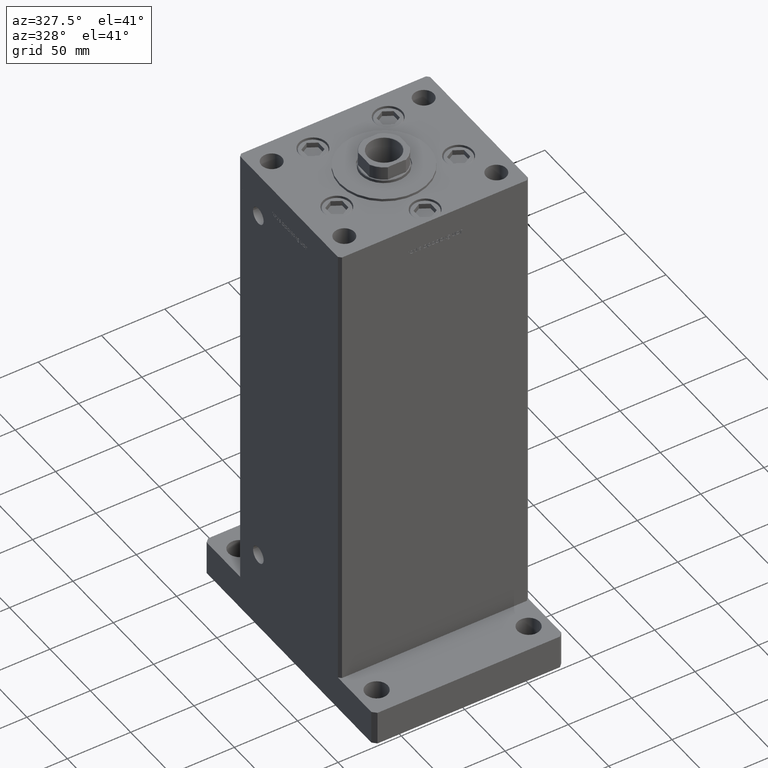
[diagram: clean part render]
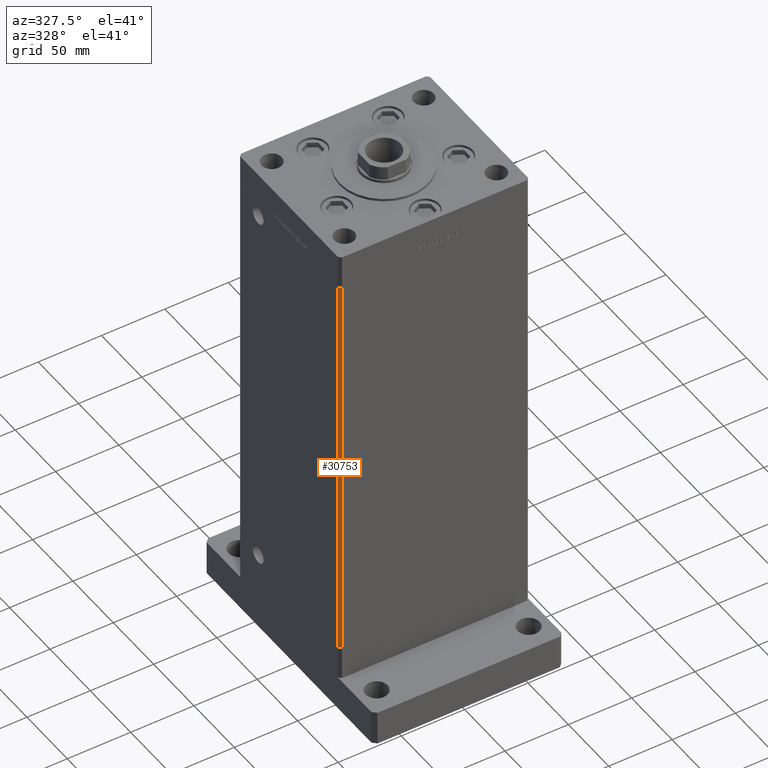
[diagram: same view with one face highlighted and labeled with its STEP entity id]
A machine part, auxiliary view. The second image highlights one B-rep face of the part: STEP entity #30753.
In plain terms, the highlighted planar face has unit normal (0.7071, 0.7071, 0).
Its self-contained STEP definition (entity closure, byte-faithful):
#130 = EDGE_CURVE ( 'NONE', #44775, #20900, #6677, .T. ) ;
#1230 = VECTOR ( 'NONE', #31695, 1000.000000000000000 ) ;
#6677 = LINE ( 'NONE', #15116, #1230 ) ;
#7467 = LINE ( 'NONE', #49818, #37245 ) ;
#8266 = DIRECTION ( 'NONE',  ( 0.7071067811865474617, -0.7071067811865474617, 0.000000000000000000 ) ) ;
#12019 = ORIENTED_EDGE ( 'NONE', *, *, #130, .F. ) ;
#12050 = CARTESIAN_POINT ( 'NONE',  ( -74.99999999999998579, -60.50000000000000000, 317.0000000000000000 ) ) ;
#13360 = ORIENTED_EDGE ( 'NONE', *, *, #32542, .T. ) ;
#13507 = DIRECTION ( 'NONE',  ( 0.7071067811865475727, 0.7071067811865475727, -0.000000000000000000 ) ) ;
#15116 = CARTESIAN_POINT ( 'NONE',  ( -72.99999999999998579, -62.50000000000000000, 317.0000000000000000 ) ) ;
#17842 = PLANE ( 'NONE',  #22283 ) ;
#17898 = VERTEX_POINT ( 'NONE', #40931 ) ;
#20520 = CARTESIAN_POINT ( 'NONE',  ( -74.99999999999998579, -60.50000000000000000, 317.0000000000000000 ) ) ;
#20900 = VERTEX_POINT ( 'NONE', #46155 ) ;
#21156 = FACE_OUTER_BOUND ( 'NONE', #23122, .T. ) ;
#22283 = AXIS2_PLACEMENT_3D ( 'NONE', #24951, #13507, #41789 ) ;
#23122 = EDGE_LOOP ( 'NONE', ( #13360, #12019, #28267, #23383 ) ) ;
#23383 = ORIENTED_EDGE ( 'NONE', *, *, #33189, .T. ) ;
#24951 = CARTESIAN_POINT ( 'NONE',  ( -74.99999999999998579, -60.50000000000000000, 317.0000000000000000 ) ) ;
#28267 = ORIENTED_EDGE ( 'NONE', *, *, #37724, .F. ) ;
#29615 = CARTESIAN_POINT ( 'NONE',  ( -72.99999999999998579, -62.50000000000000000, 317.0000000000000000 ) ) ;
#30753 = ADVANCED_FACE ( 'NONE', ( #21156 ), #17842, .F. ) ;
#31695 = DIRECTION ( 'NONE',  ( -0.000000000000000000, -0.000000000000000000, -1.000000000000000000 ) ) ;
#32542 = EDGE_CURVE ( 'NONE', #17898, #20900, #39995, .T. ) ;
#33189 = EDGE_CURVE ( 'NONE', #42619, #17898, #44687, .T. ) ;
#35916 = CARTESIAN_POINT ( 'NONE',  ( -74.99999999999998579, -60.50000000000000000, 0.000000000000000000 ) ) ;
#37245 = VECTOR ( 'NONE', #8266, 1000.000000000000114 ) ;
#37724 = EDGE_CURVE ( 'NONE', #42619, #44775, #7467, .T. ) ;
#39995 = LINE ( 'NONE', #35916, #50904 ) ;
#40931 = CARTESIAN_POINT ( 'NONE',  ( -74.99999999999998579, -60.50000000000000000, 0.000000000000000000 ) ) ;
#41789 = DIRECTION ( 'NONE',  ( -0.7071067811865474617, 0.7071067811865474617, 0.000000000000000000 ) ) ;
#42619 = VERTEX_POINT ( 'NONE', #12050 ) ;
#44687 = LINE ( 'NONE', #20520, #53562 ) ;
#44775 = VERTEX_POINT ( 'NONE', #29615 ) ;
#44948 = DIRECTION ( 'NONE',  ( -0.000000000000000000, -0.000000000000000000, -1.000000000000000000 ) ) ;
#45940 = DIRECTION ( 'NONE',  ( 0.7071067811865474617, -0.7071067811865474617, 0.000000000000000000 ) ) ;
#46155 = CARTESIAN_POINT ( 'NONE',  ( -72.99999999999998579, -62.50000000000000000, 0.000000000000000000 ) ) ;
#49818 = CARTESIAN_POINT ( 'NONE',  ( -74.99999999999998579, -60.50000000000000000, 317.0000000000000000 ) ) ;
#50904 = VECTOR ( 'NONE', #45940, 1000.000000000000114 ) ;
#53562 = VECTOR ( 'NONE', #44948, 1000.000000000000000 ) ;